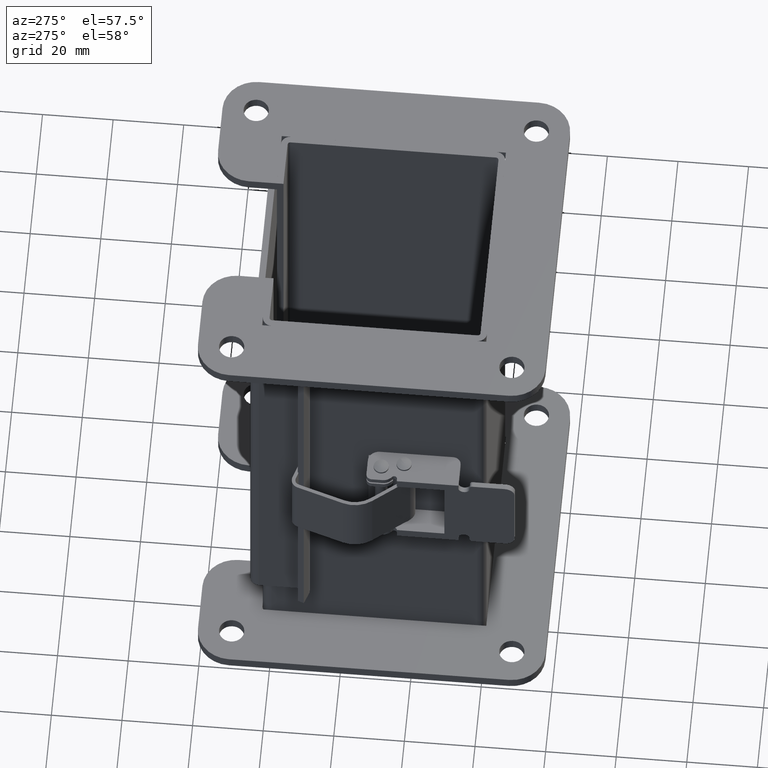
[diagram: clean part render]
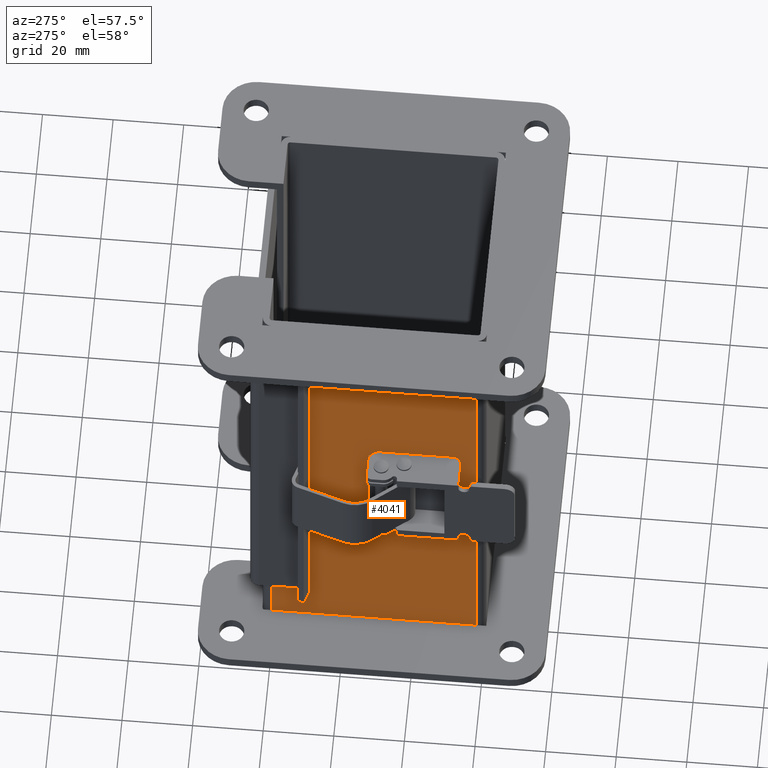
[diagram: same view with one face highlighted and labeled with its STEP entity id]
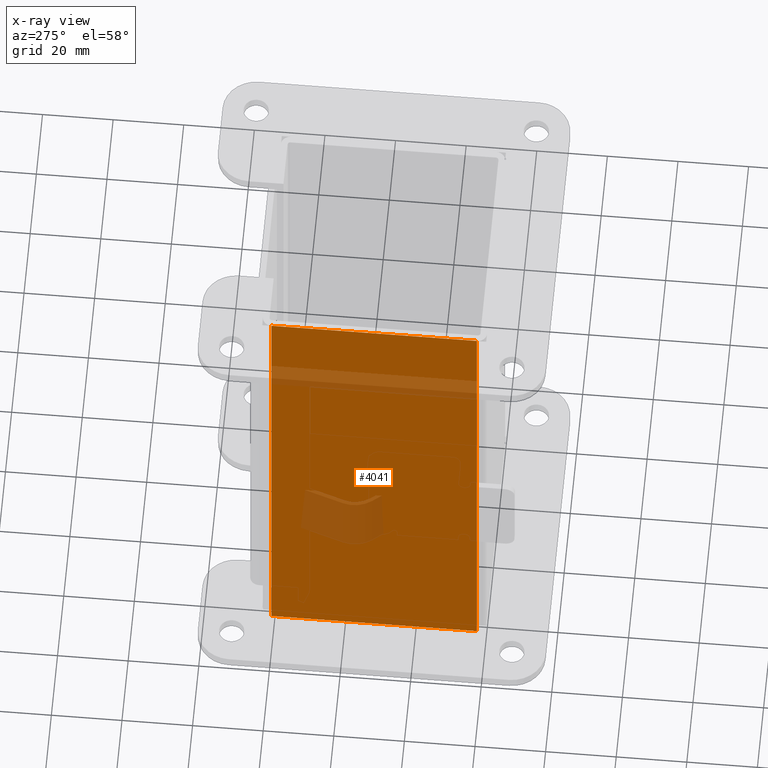
[diagram: x-ray of the same camera — body ghosted, the highlighted face saturated]
A machine part, auxiliary view. The second image highlights one B-rep face of the part: STEP entity #4041.
The next image is the same camera in x-ray: the body ghosted, the highlighted face saturated — about 12% of this face is hidden behind the body in this view.
In plain terms, the highlighted planar face has unit normal (1, 0, 0).
Its self-contained STEP definition (entity closure, byte-faithful):
#192=PLANE('',#4304);
#352=FACE_OUTER_BOUND('',#587,.T.);
#587=EDGE_LOOP('',(#2833,#2834,#2835,#2836));
#1024=LINE('',#5945,#1414);
#1048=LINE('',#5998,#1438);
#1051=LINE('',#6005,#1441);
#1058=LINE('',#6026,#1448);
#1414=VECTOR('',#4721,6.);
#1438=VECTOR('',#4775,2.2895);
#1441=VECTOR('',#4782,2.2895);
#1448=VECTOR('',#4809,6.);
#1801=VERTEX_POINT('',#5942);
#1802=VERTEX_POINT('',#5944);
#1816=VERTEX_POINT('',#5996);
#1818=VERTEX_POINT('',#6004);
#2175=EDGE_CURVE('',#1802,#1801,#1024,.T.);
#2202=EDGE_CURVE('',#1816,#1801,#1048,.T.);
#2205=EDGE_CURVE('',#1802,#1818,#1051,.T.);
#2216=EDGE_CURVE('',#1816,#1818,#1058,.T.);
#2833=ORIENTED_EDGE('',*,*,#2175,.T.);
#2834=ORIENTED_EDGE('',*,*,#2202,.F.);
#2835=ORIENTED_EDGE('',*,*,#2216,.T.);
#2836=ORIENTED_EDGE('',*,*,#2205,.F.);
#4041=ADVANCED_FACE('',(#352),#192,.F.);
#4304=AXIS2_PLACEMENT_3D('',#6040,#4825,#4826);
#4721=DIRECTION('',(1.75071762876023E-16,1.,-2.33117695459351E-16));
#4775=DIRECTION('',(-1.83758917935762E-15,2.95822839457879E-31,1.));
#4782=DIRECTION('',(1.77635683940025E-15,-1.74838271594513E-16,-1.));
#4809=DIRECTION('',(-1.75071762876023E-16,-1.,-4.29061052376694E-34));
#4825=DIRECTION('center_axis',(1.,-1.75071762876023E-16,1.82177988069564E-15));
#4826=DIRECTION('ref_axis',(1.69197988952874E-15,1.74838271594513E-16,-1.));
#5942=CARTESIAN_POINT('',(-1.25,3.,2.39475));
#5944=CARTESIAN_POINT('',(-1.25000000000001,-3.,2.39475));
#5945=CARTESIAN_POINT('',(-1.25000000000001,-1.5,2.39475));
#5996=CARTESIAN_POINT('',(-1.25,3.,0.10525));
#5998=CARTESIAN_POINT('',(-1.25,3.,0.105249999999999));
#6004=CARTESIAN_POINT('',(-1.25,-3.,0.10525));
#6005=CARTESIAN_POINT('',(-1.25,-3.,-0.0401177752669075));
#6026=CARTESIAN_POINT('',(-1.25,-4.57322876385394E-17,0.10525));
#6040=CARTESIAN_POINT('Origin',(-1.25,-1.09880074211202E-16,1.26628305618327));